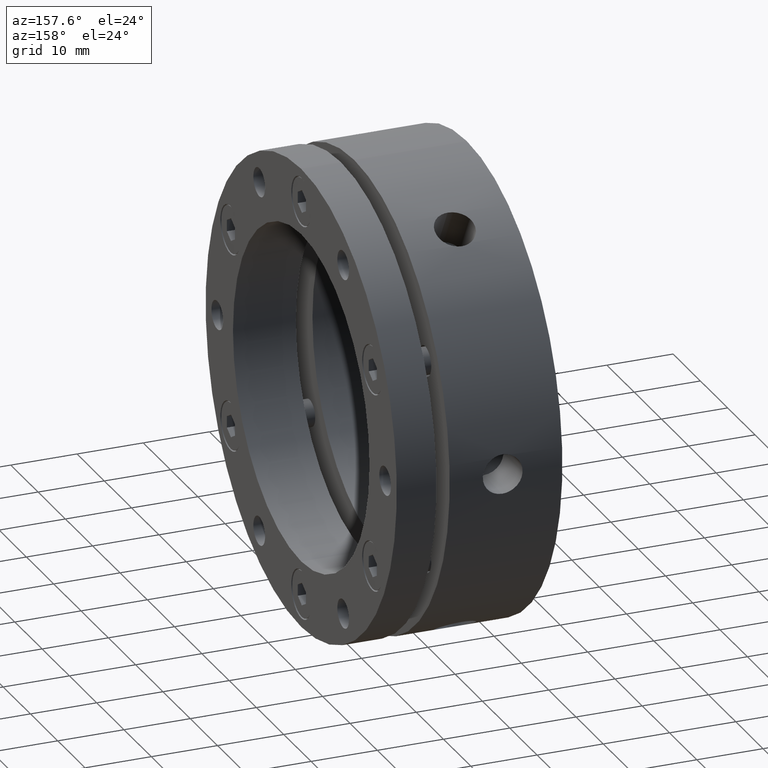
[diagram: clean part render]
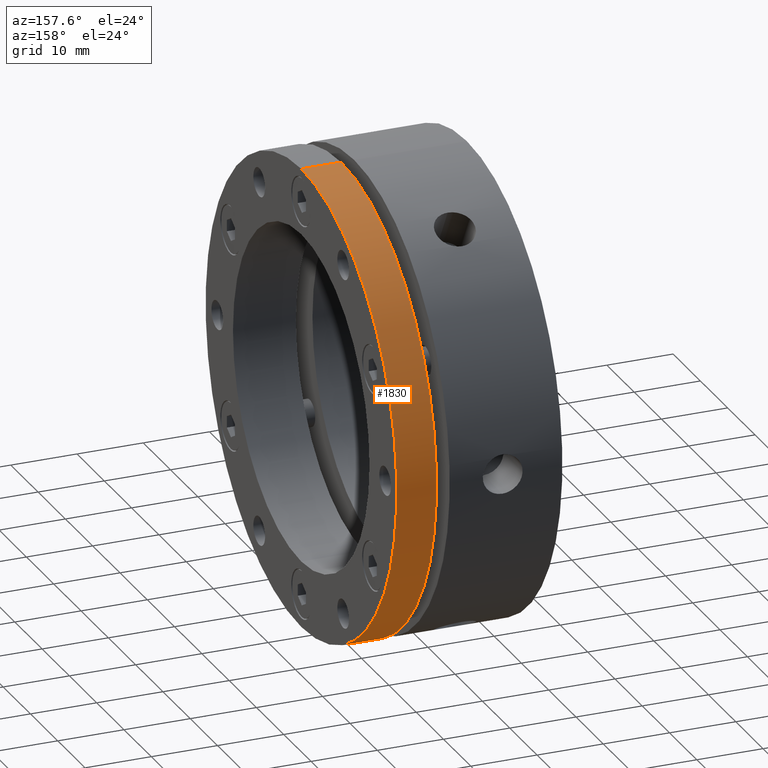
[diagram: same view with one face highlighted and labeled with its STEP entity id]
A machine part, auxiliary view. The second image highlights one B-rep face of the part: STEP entity #1830.
In plain terms, the highlighted cylindrical surface (partial cylindrical patch) has radius 35 mm, axis along (1, 0, 0).
Its self-contained STEP definition (entity closure, byte-faithful):
#186 = AXIS2_PLACEMENT_3D ( 'NONE', #3578, #3576, #3574 ) ;
#489 = EDGE_LOOP ( 'NONE', ( #1005, #1024, #955, #997 ) ) ;
#570 = EDGE_CURVE ( 'NONE', #793, #800, #840, .T. ) ;
#571 = EDGE_CURVE ( 'NONE', #799, #800, #837, .T. ) ;
#573 = EDGE_CURVE ( 'NONE', #796, #799, #843, .T. ) ;
#574 = EDGE_CURVE ( 'NONE', #793, #796, #845, .T. ) ;
#603 = AXIS2_PLACEMENT_3D ( 'NONE', #1530, #1531, #1532 ) ;
#605 = AXIS2_PLACEMENT_3D ( 'NONE', #1539, #1540, #1541 ) ;
#793 = VERTEX_POINT ( 'NONE', #1942 ) ;
#796 = VERTEX_POINT ( 'NONE', #1945 ) ;
#799 = VERTEX_POINT ( 'NONE', #1948 ) ;
#800 = VERTEX_POINT ( 'NONE', #1949 ) ;
#837 = CIRCLE ( 'NONE', #603, 35.00000000000000000 ) ;
#840 = LINE ( 'NONE', #1523, #842 ) ;
#842 = VECTOR ( 'NONE', #1527, 1000.000000000000000 ) ;
#843 = LINE ( 'NONE', #1534, #846 ) ;
#845 = CIRCLE ( 'NONE', #605, 35.00000000000000000 ) ;
#846 = VECTOR ( 'NONE', #1529, 1000.000000000000000 ) ;
#955 = ORIENTED_EDGE ( 'NONE', *, *, #571, .T. ) ;
#997 = ORIENTED_EDGE ( 'NONE', *, *, #570, .F. ) ;
#1005 = ORIENTED_EDGE ( 'NONE', *, *, #574, .T. ) ;
#1024 = ORIENTED_EDGE ( 'NONE', *, *, #573, .T. ) ;
#1523 = CARTESIAN_POINT ( 'NONE',  ( 12.49999999999999300, 0.0000000000000000000, -35.00000000000000000 ) ) ;
#1527 = DIRECTION ( 'NONE',  ( 1.000000000000000000, 0.0000000000000000000, 0.0000000000000000000 ) ) ;
#1529 = DIRECTION ( 'NONE',  ( 1.000000000000000000, 0.0000000000000000000, 0.0000000000000000000 ) ) ;
#1530 = CARTESIAN_POINT ( 'NONE',  ( 24.99999999999999300, 0.0000000000000000000, 0.0000000000000000000 ) ) ;
#1531 = DIRECTION ( 'NONE',  ( -1.000000000000000000, -0.0000000000000000000, -0.0000000000000000000 ) ) ;
#1532 = DIRECTION ( 'NONE',  ( 0.0000000000000000000, 0.0000000000000000000, -1.000000000000000000 ) ) ;
#1534 = CARTESIAN_POINT ( 'NONE',  ( 12.49999999999999300, 4.286263797015736500E-015, 35.00000000000000000 ) ) ;
#1539 = CARTESIAN_POINT ( 'NONE',  ( 18.99999999999999600, 0.0000000000000000000, 0.0000000000000000000 ) ) ;
#1540 = DIRECTION ( 'NONE',  ( 1.000000000000000000, 0.0000000000000000000, 0.0000000000000000000 ) ) ;
#1541 = DIRECTION ( 'NONE',  ( 0.0000000000000000000, 0.0000000000000000000, -1.000000000000000000 ) ) ;
#1830 = ADVANCED_FACE ( 'NONE', ( #2810 ), #2819, .T. ) ;
#1942 = CARTESIAN_POINT ( 'NONE',  ( 18.99999999999999600, 0.0000000000000000000, -35.00000000000000000 ) ) ;
#1945 = CARTESIAN_POINT ( 'NONE',  ( 18.99999999999999600, 4.286263797015736500E-015, 35.00000000000000000 ) ) ;
#1948 = CARTESIAN_POINT ( 'NONE',  ( 24.99999999999999300, 4.286263797015736500E-015, 35.00000000000000000 ) ) ;
#1949 = CARTESIAN_POINT ( 'NONE',  ( 24.99999999999999300, 0.0000000000000000000, -35.00000000000000000 ) ) ;
#2810 = FACE_OUTER_BOUND ( 'NONE', #489, .T. ) ;
#2819 = CYLINDRICAL_SURFACE ( 'NONE', #186, 35.00000000000000000 ) ;
#3574 = DIRECTION ( 'NONE',  ( 0.0000000000000000000, 0.0000000000000000000, -1.000000000000000000 ) ) ;
#3576 = DIRECTION ( 'NONE',  ( 1.000000000000000000, 0.0000000000000000000, 0.0000000000000000000 ) ) ;
#3578 = CARTESIAN_POINT ( 'NONE',  ( 12.49999999999999300, 0.0000000000000000000, 0.0000000000000000000 ) ) ;